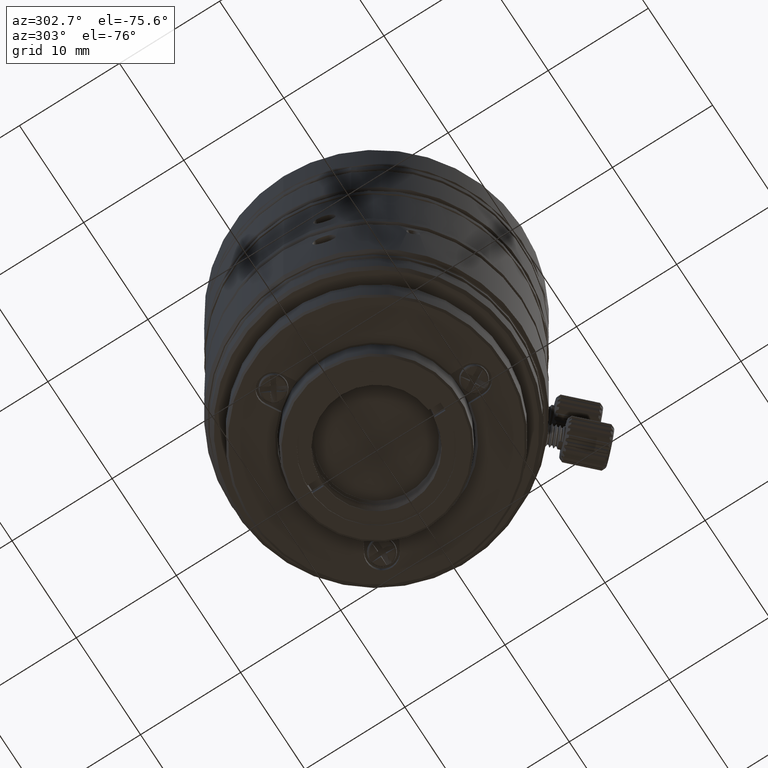
[diagram: clean part render]
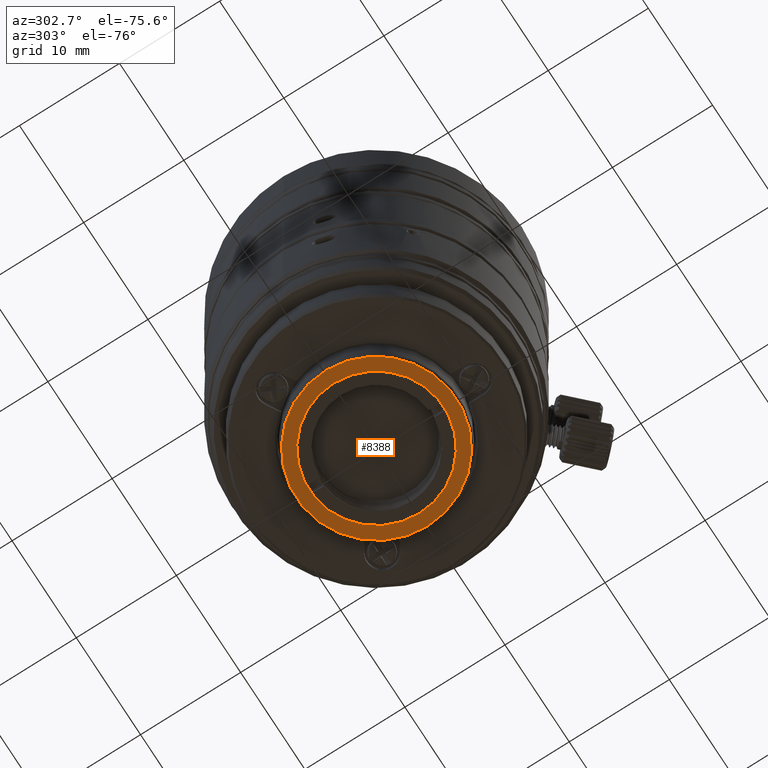
[diagram: same view with one face highlighted and labeled with its STEP entity id]
A machine part, auxiliary view. The second image highlights one B-rep face of the part: STEP entity #8388.
In plain terms, the highlighted planar face has unit normal (0, 0, 1).
Its self-contained STEP definition (entity closure, byte-faithful):
#184 = EDGE_CURVE ( 'NONE', #30169, #10126, #35093, .T. ) ;
#775 = EDGE_LOOP ( 'NONE', ( #30550, #16121 ) ) ;
#1627 = ORIENTED_EDGE ( 'NONE', *, *, #3285, .F. ) ;
#3285 = EDGE_CURVE ( 'NONE', #36321, #28059, #5264, .T. ) ;
#4242 = CARTESIAN_POINT ( 'NONE',  ( -6.709793047796540399, -0.05269967496297517373, -4.001033116400000367 ) ) ;
#4483 = CARTESIAN_POINT ( 'NONE',  ( 7.999757773975619379, 0.06283124255367136812, -4.001033116400000367 ) ) ;
#5264 = CIRCLE ( 'NONE', #6934, 6.709999999999999076 ) ;
#6055 = AXIS2_PLACEMENT_3D ( 'NONE', #22999, #14537, #31280 ) ;
#6934 = AXIS2_PLACEMENT_3D ( 'NONE', #23063, #9444, #34283 ) ;
#7475 = PLANE ( 'NONE',  #19166 ) ;
#8388 = ADVANCED_FACE ( 'NONE', ( #24589, #24054 ), #7475, .F. ) ;
#8953 = AXIS2_PLACEMENT_3D ( 'NONE', #33536, #27837, #10916 ) ;
#9444 = DIRECTION ( 'NONE',  ( 0.000000000000000000, 0.000000000000000000, -1.000000000000000000 ) ) ;
#10126 = VERTEX_POINT ( 'NONE', #4483 ) ;
#10595 = DIRECTION ( 'NONE',  ( 0.000000000000000000, 0.000000000000000000, 1.000000000000000000 ) ) ;
#10916 = DIRECTION ( 'NONE',  ( 0.9999691576447901076, 0.007853900888669921102, 0.000000000000000000 ) ) ;
#12602 = EDGE_LOOP ( 'NONE', ( #29481, #1627 ) ) ;
#14153 = DIRECTION ( 'NONE',  ( 0.000000000000000000, 0.000000000000000000, 1.000000000000000000 ) ) ;
#14537 = DIRECTION ( 'NONE',  ( 0.000000000000000000, 0.000000000000000000, -1.000000000000000000 ) ) ;
#15463 = CIRCLE ( 'NONE', #6055, 6.709999999999999076 ) ;
#16121 = ORIENTED_EDGE ( 'NONE', *, *, #26507, .F. ) ;
#16937 = CARTESIAN_POINT ( 'NONE',  ( 0.000000000000000000, 0.000000000000000000, -4.001033116400000367 ) ) ;
#17789 = CARTESIAN_POINT ( 'NONE',  ( 6.709793047796540399, 0.05269967496297599946, -4.001033116400000367 ) ) ;
#19166 = AXIS2_PLACEMENT_3D ( 'NONE', #24405, #10595, #26802 ) ;
#21048 = EDGE_CURVE ( 'NONE', #28059, #36321, #15463, .T. ) ;
#22999 = CARTESIAN_POINT ( 'NONE',  ( 0.000000000000000000, 0.000000000000000000, -4.001033116400000367 ) ) ;
#23063 = CARTESIAN_POINT ( 'NONE',  ( 0.000000000000000000, 0.000000000000000000, -4.001033116400000367 ) ) ;
#24054 = FACE_BOUND ( 'NONE', #12602, .T. ) ;
#24405 = CARTESIAN_POINT ( 'NONE',  ( 0.05442756865073190148, -6.929790781399019828, -4.001033116400000367 ) ) ;
#24589 = FACE_OUTER_BOUND ( 'NONE', #775, .T. ) ;
#24924 = CARTESIAN_POINT ( 'NONE',  ( -7.999757773975619379, -0.06283124255367233957, -4.001033116400000367 ) ) ;
#26507 = EDGE_CURVE ( 'NONE', #10126, #30169, #35995, .T. ) ;
#26802 = DIRECTION ( 'NONE',  ( 1.000000000000000000, 0.000000000000000000, 0.000000000000000000 ) ) ;
#27837 = DIRECTION ( 'NONE',  ( 0.000000000000000000, 0.000000000000000000, 1.000000000000000000 ) ) ;
#28059 = VERTEX_POINT ( 'NONE', #4242 ) ;
#29481 = ORIENTED_EDGE ( 'NONE', *, *, #21048, .F. ) ;
#30169 = VERTEX_POINT ( 'NONE', #24924 ) ;
#30550 = ORIENTED_EDGE ( 'NONE', *, *, #184, .F. ) ;
#31280 = DIRECTION ( 'NONE',  ( -0.9999691576447901076, -0.007853900888669922836, 0.000000000000000000 ) ) ;
#31592 = AXIS2_PLACEMENT_3D ( 'NONE', #16937, #14153, #34205 ) ;
#33536 = CARTESIAN_POINT ( 'NONE',  ( 0.000000000000000000, 0.000000000000000000, -4.001033116400000367 ) ) ;
#34205 = DIRECTION ( 'NONE',  ( 0.9999691576447901076, 0.007853900888669921102, 0.000000000000000000 ) ) ;
#34283 = DIRECTION ( 'NONE',  ( -0.9999691576447901076, -0.007853900888669922836, 0.000000000000000000 ) ) ;
#35093 = CIRCLE ( 'NONE', #31592, 8.000004512777000087 ) ;
#35995 = CIRCLE ( 'NONE', #8953, 8.000004512777000087 ) ;
#36321 = VERTEX_POINT ( 'NONE', #17789 ) ;